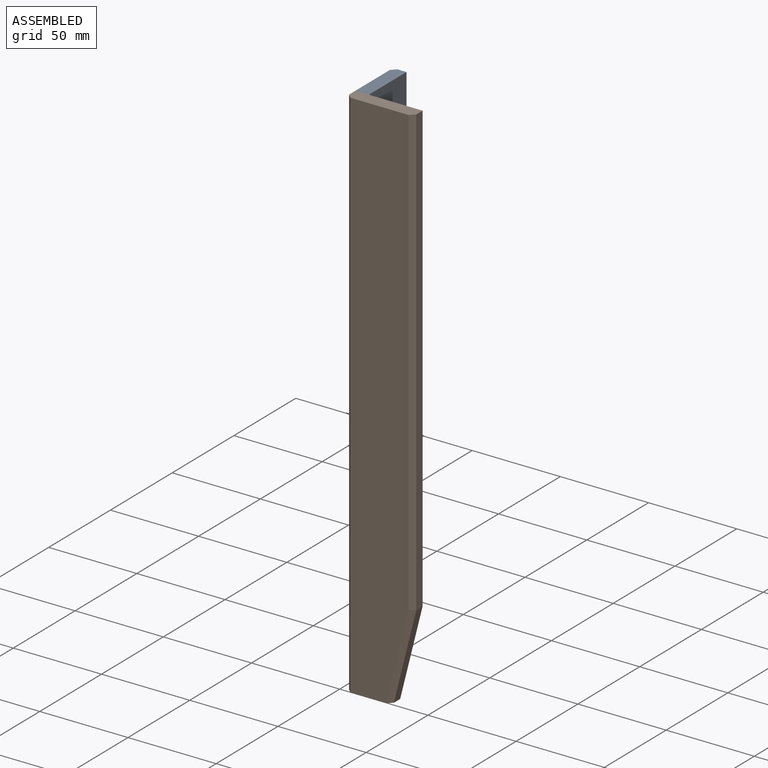
[diagram: assembled view]
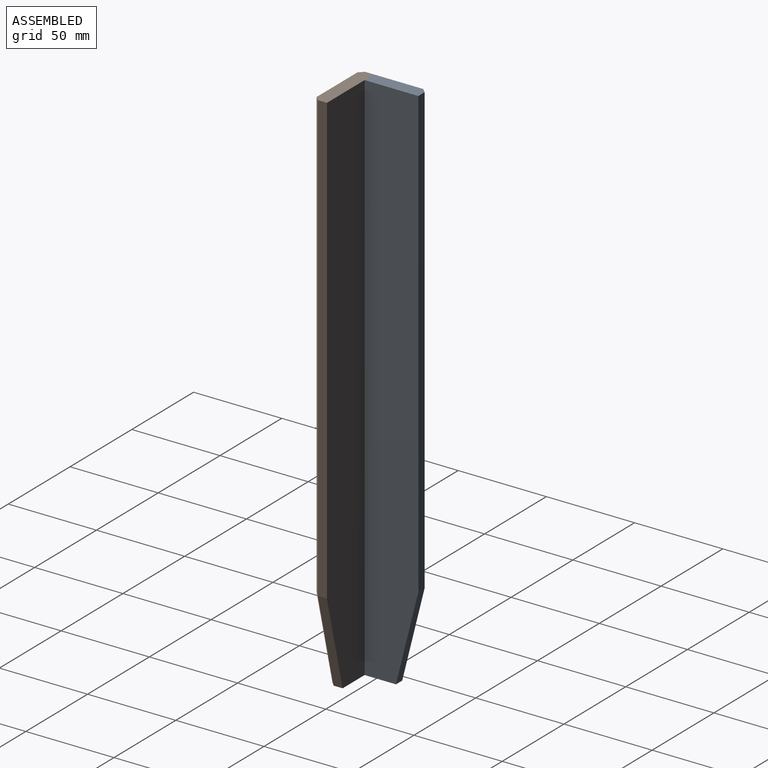
[diagram: assembled view, second angle]
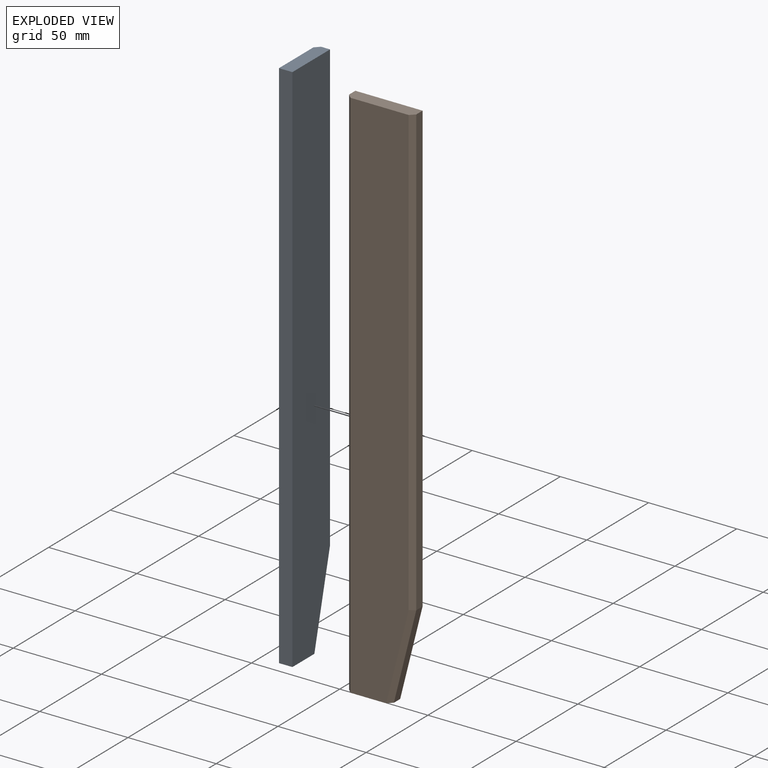
[diagram: exploded view]
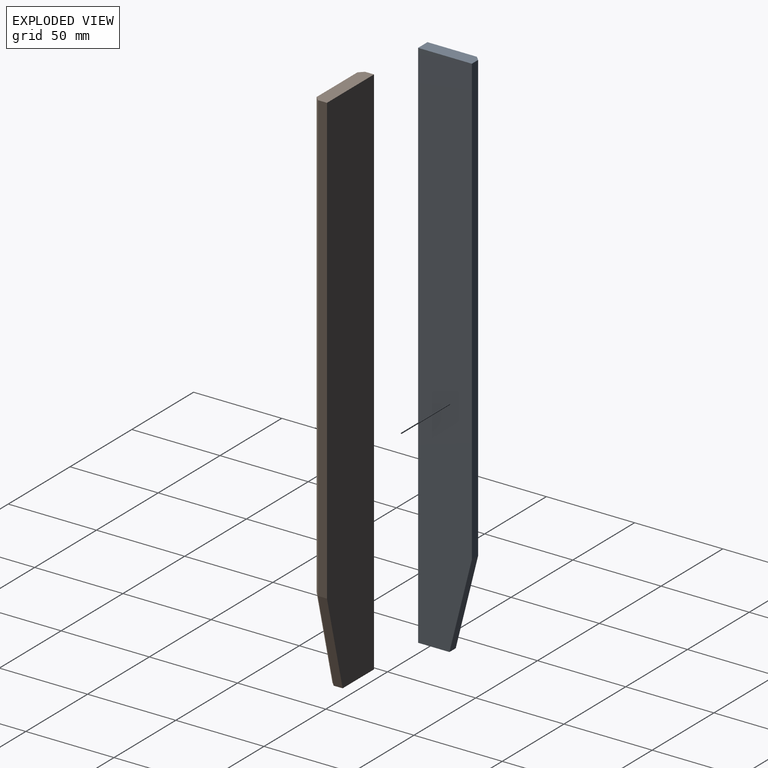
[diagram: exploded view, second angle]
ASSEMBLY  parts=2 mates=3
PART A: 9 faces, bbox 7.6x30.5x304.8 mm
  f0: plane 304.8x7.62mm, normal (0,1,0), area 2322.6mm2, adj f1,f4,f5,f6
  f1: plane 30.48x7.62mm, normal (0,0,1), area 229mm2, adj f0,f2,f5,f6,f7
  f2: plane 254x5.08mm, normal (0,-1,0), area 1290.3mm2, adj f1,f3,f6,f7
  f3: plane 50.8x12.7mm, normal (0,-0.97,-0.24), area 266mm2, adj f2,f4,f6,f8
  f4: plane 17.78x7.62mm, normal (0,0,-1), area 132.2mm2, adj f0,f3,f5,f6,f8
  f5: plane 304.8x27.94mm, normal (1,0,0), area 8189.5mm2, adj f0,f1,f4,f7,f8
  f6: plane 304.8x30.48mm, normal (-1,0,0), area 8967.7mm2, adj f0,f1,f2,f3,f4
  f7: plane 254x2.54mm, normal (0.71,-0.71,0), area 911.8mm2, adj f1,f2,f5,f8
  f8: plane 51.11x15.32mm, normal (0.71,-0.69,-0.17), area 188.7mm2, adj f3,f4,f5,f7
PART B: 10 faces, bbox 38.1x7.6x304.8 mm
  f0: plane 38.1x7.62mm, normal (0,0,1), area 283.9mm2, adj f1,f4,f5,f6,f7,f9
  f1: plane 304.8x5.08mm, normal (-1,0,0), area 1548.4mm2, adj f0,f2,f6,f9
  f2: plane 25.4x7.62mm, normal (0,0,-1), area 187mm2, adj f1,f3,f5,f6,f8,f9
  f3: plane 50.8x12.7mm, normal (0.97,0,-0.24), area 266mm2, adj f2,f4,f6,f8
  f4: plane 254x5.08mm, normal (1,0,0), area 1290.3mm2, adj f0,f3,f6,f7
  f5: plane 304.8x33.02mm, normal (0,-1,0), area 9737.9mm2, adj f0,f2,f7,f8,f9
  f6: plane 304.8x38.1mm, normal (0,1,0), area 11290.3mm2, adj f0,f1,f2,f3,f4
  f7: plane 254x2.54mm, normal (0.71,-0.71,0), area 911.8mm2, adj f0,f4,f5,f8
  f8: plane 51.11x15.32mm, normal (0.69,-0.71,-0.17), area 188.7mm2, adj f2,f3,f5,f7
  f9: plane 304.8x2.54mm, normal (-0.71,-0.71,0), area 1094.9mm2, adj f0,f1,f2,f5
PLACE A rot(axis=(0,0,-1),180deg) t=(-132.83,-4.86,-78.61)mm
PLACE B t=(-94.86,-50.95,-10.23)mm fixed
MATE planar A.f5 <-> B.f1  axis (-1,0,0) through (-140.45,-37.37,28.39)mm
MATE planar A.f1 <-> B.f0  axis (0,0,1) through (-136.6,-35.91,175.39)mm
MATE planar A.f0 <-> B.f6  axis (0,-1,0) through (-136.64,-50.95,22.99)mm
